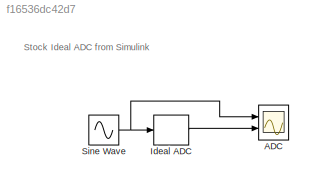
MODEL slx_f16536dc42d7
KIND model
CONFIG AbsTol = auto
CONFIG FixedStep = 1/2e9
CONFIG MaxStep = 1/2e9/10
CONFIG MinStep = auto
CONFIG PreLoadFcn = SigFreq=100e6;\nJitter=5e-12;\nConst_Delay=Jitter*12;\nMax_Delay=Const_Delay*2;\nTheoreticalSNR=-20*log10(2*pi*SigFreq*Jitter);
CONFIG RelTol = 1e-4
CONFIG SampleTimeConstraint = Unconstrained
CONFIG Solver = VariableStepAuto
CONFIG SolverMode = Auto
CONFIG SolverName = VariableStepAuto
CONFIG StartTime = 0.0
CONFIG StopFcn = %dt=diff(simout.time);\n%max_step=max(dt)\n%min_step = min(dt)
CONFIG StopTime = 1e-4
BLOCK [Scope] ADC
  NumInputPorts = 2
  Ports = [2]
  ScopeSpecificationString = Simulink.scopes.TimeScopeBlockCfg('CurrentConfiguration', extmgr.ConfigurationSet(extmgr.Configuration('Core','General UI',true),extmgr.Configuration('Core','Source UI',true),extmgr.Configuration('Sources','WiredSimulink',true,'DataLoggingVariableName','ScopeData1','DataLoggingSaveFormat','StructureWithTime','DataLoggingMaxPoints','8250','DataLoggingLimitDataPoints',true,'DataLoggingDecimation','1...<+1856ch>
BLOCK [ZeroOrderHold] Ideal ADC
  SampleTime = 1/2e9
BLOCK [Sin] Sine Wave
  Frequency = 2*pi*SigFreq
  Ports = [0, 1]
  SampleTime = 0
ANNOTATION (root): Stock Ideal ADC from Simulink
LINE Ideal ADC:1 -> ADC:2
NET Sine Wave:1 -> ADC:1, Ideal ADC:1
note: NET lines group one-source signal fan-out (src -> all destinations, sorted); 1:1 wires keep LINE
